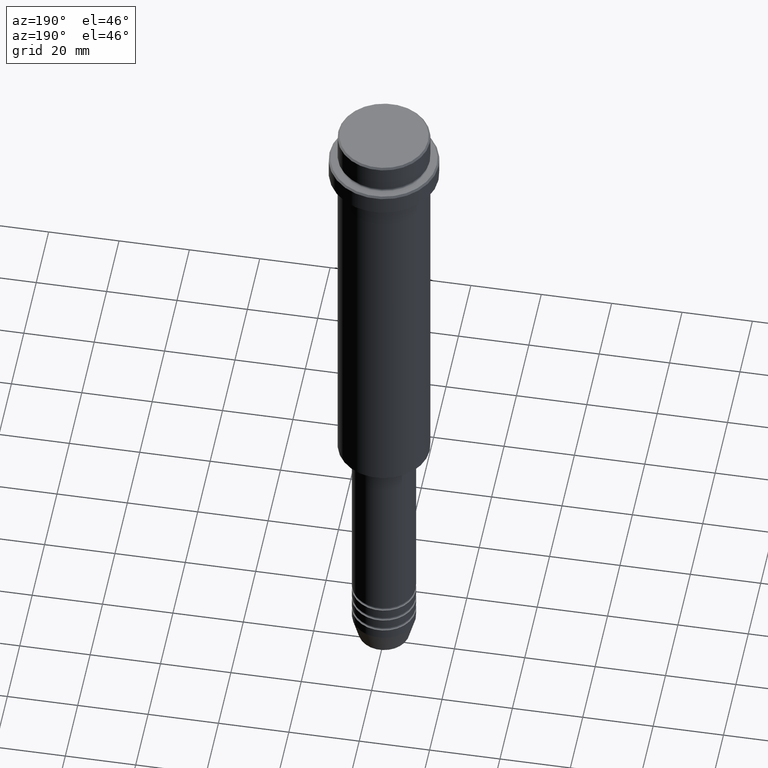
[diagram: clean part render]
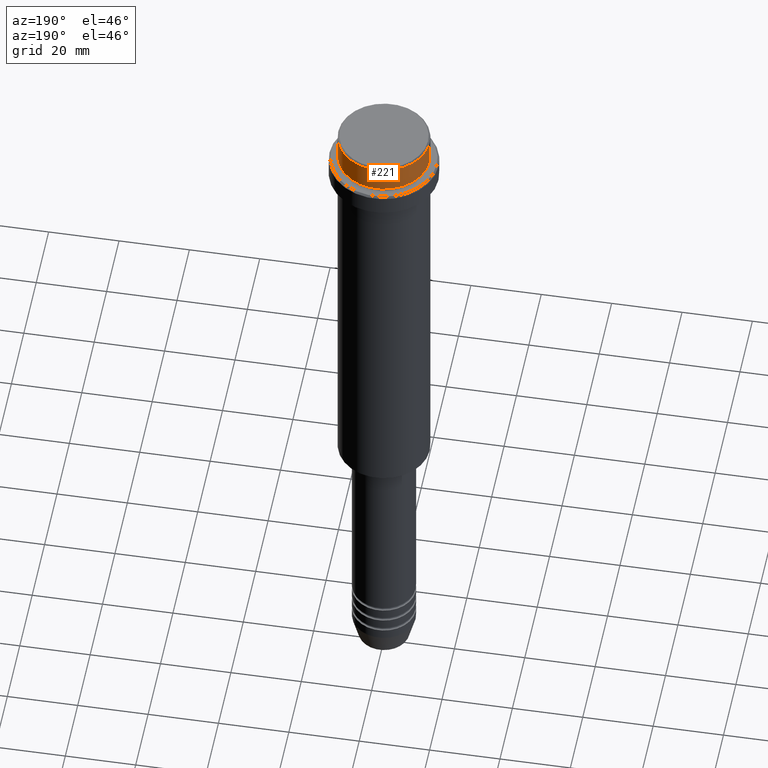
[diagram: same view with one face highlighted and labeled with its STEP entity id]
A machine part, auxiliary view. The second image highlights one B-rep face of the part: STEP entity #221.
In plain terms, the highlighted cylindrical surface (partial cylindrical patch) has radius 13 mm, axis along (-0, -0, 1).
Its self-contained STEP definition (entity closure, byte-faithful):
#18 = ORIENTED_EDGE ( 'NONE', *, *, #222, .T. ) ;
#39 = DIRECTION ( 'NONE',  ( -0.000000000000000000, -0.000000000000000000, 1.000000000000000000 ) ) ;
#75 = CARTESIAN_POINT ( 'NONE',  ( 0.000000000000000000, 0.000000000000000000, 0.000000000000000000 ) ) ;
#99 = CARTESIAN_POINT ( 'NONE',  ( 12.99999999999999822, 0.000000000000000000, 0.000000000000000000 ) ) ;
#123 = DIRECTION ( 'NONE',  ( -0.000000000000000000, -0.000000000000000000, 1.000000000000000000 ) ) ;
#175 = CYLINDRICAL_SURFACE ( 'NONE', #821, 12.99999999999999822 ) ;
#199 = ORIENTED_EDGE ( 'NONE', *, *, #1045, .T. ) ;
#216 = LINE ( 'NONE', #879, #661 ) ;
#221 = ADVANCED_FACE ( 'NONE', ( #296 ), #175, .T. ) ;
#222 = EDGE_CURVE ( 'NONE', #1320, #525, #216, .T. ) ;
#280 = VECTOR ( 'NONE', #316, 1000.000000000000000 ) ;
#296 = FACE_OUTER_BOUND ( 'NONE', #1324, .T. ) ;
#316 = DIRECTION ( 'NONE',  ( -0.000000000000000000, -0.000000000000000000, 1.000000000000000000 ) ) ;
#349 = CIRCLE ( 'NONE', #1217, 12.99999999999999822 ) ;
#372 = DIRECTION ( 'NONE',  ( 1.000000000000000000, 0.000000000000000000, 0.000000000000000000 ) ) ;
#386 = EDGE_CURVE ( 'NONE', #525, #549, #1169, .T. ) ;
#413 = CARTESIAN_POINT ( 'NONE',  ( -12.99999999999999822, 1.592040838891558898E-15, -7.999999999999998224 ) ) ;
#473 = DIRECTION ( 'NONE',  ( 1.000000000000000000, 0.000000000000000000, 0.000000000000000000 ) ) ;
#525 = VERTEX_POINT ( 'NONE', #613 ) ;
#549 = VERTEX_POINT ( 'NONE', #1059 ) ;
#566 = CARTESIAN_POINT ( 'NONE',  ( 12.99999999999999822, 0.000000000000000000, -7.999999999999998224 ) ) ;
#613 = CARTESIAN_POINT ( 'NONE',  ( -12.99999999999999822, 1.592040838891558898E-15, -0.5000000000000037748 ) ) ;
#661 = VECTOR ( 'NONE', #39, 1000.000000000000000 ) ;
#821 = AXIS2_PLACEMENT_3D ( 'NONE', #75, #1072, #473 ) ;
#862 = LINE ( 'NONE', #99, #280 ) ;
#879 = CARTESIAN_POINT ( 'NONE',  ( -12.99999999999999822, 1.592040838891558898E-15, 0.000000000000000000 ) ) ;
#881 = DIRECTION ( 'NONE',  ( 1.000000000000000000, 0.000000000000000000, 0.000000000000000000 ) ) ;
#926 = EDGE_CURVE ( 'NONE', #1063, #549, #862, .T. ) ;
#929 = ORIENTED_EDGE ( 'NONE', *, *, #386, .T. ) ;
#1045 = EDGE_CURVE ( 'NONE', #1063, #1320, #349, .T. ) ;
#1059 = CARTESIAN_POINT ( 'NONE',  ( 12.99999999999999822, 0.000000000000000000, -0.5000000000000037748 ) ) ;
#1063 = VERTEX_POINT ( 'NONE', #566 ) ;
#1072 = DIRECTION ( 'NONE',  ( -0.000000000000000000, -0.000000000000000000, 1.000000000000000000 ) ) ;
#1110 = CARTESIAN_POINT ( 'NONE',  ( 0.000000000000000000, 0.000000000000000000, -7.999999999999998224 ) ) ;
#1116 = DIRECTION ( 'NONE',  ( 0.000000000000000000, 0.000000000000000000, -1.000000000000000000 ) ) ;
#1169 = CIRCLE ( 'NONE', #1285, 12.99999999999999822 ) ;
#1217 = AXIS2_PLACEMENT_3D ( 'NONE', #1110, #123, #881 ) ;
#1285 = AXIS2_PLACEMENT_3D ( 'NONE', #1369, #1116, #372 ) ;
#1295 = ORIENTED_EDGE ( 'NONE', *, *, #926, .F. ) ;
#1320 = VERTEX_POINT ( 'NONE', #413 ) ;
#1324 = EDGE_LOOP ( 'NONE', ( #199, #18, #929, #1295 ) ) ;
#1369 = CARTESIAN_POINT ( 'NONE',  ( 0.000000000000000000, 0.000000000000000000, -0.5000000000000037748 ) ) ;